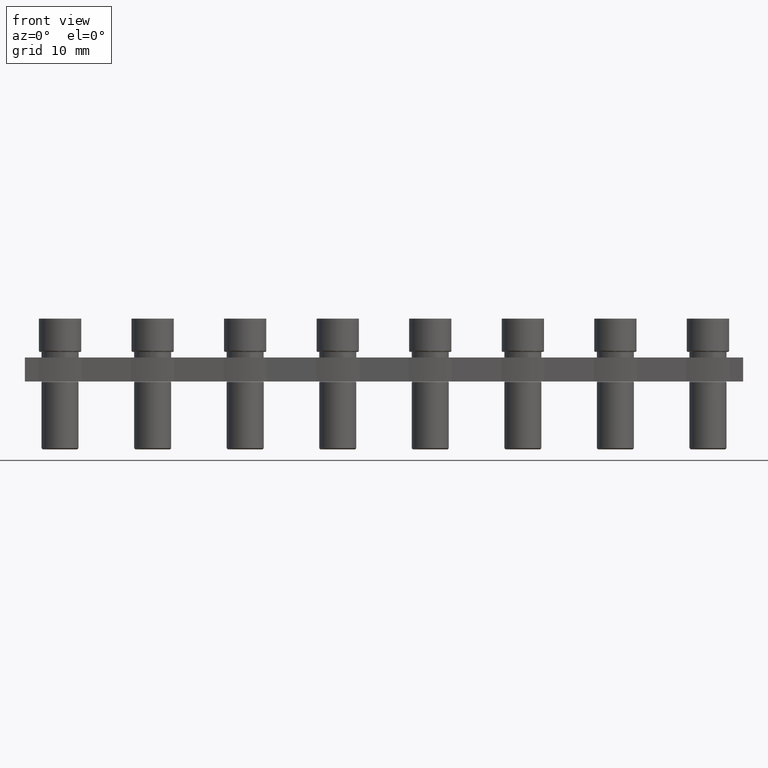
[diagram: clean part render]
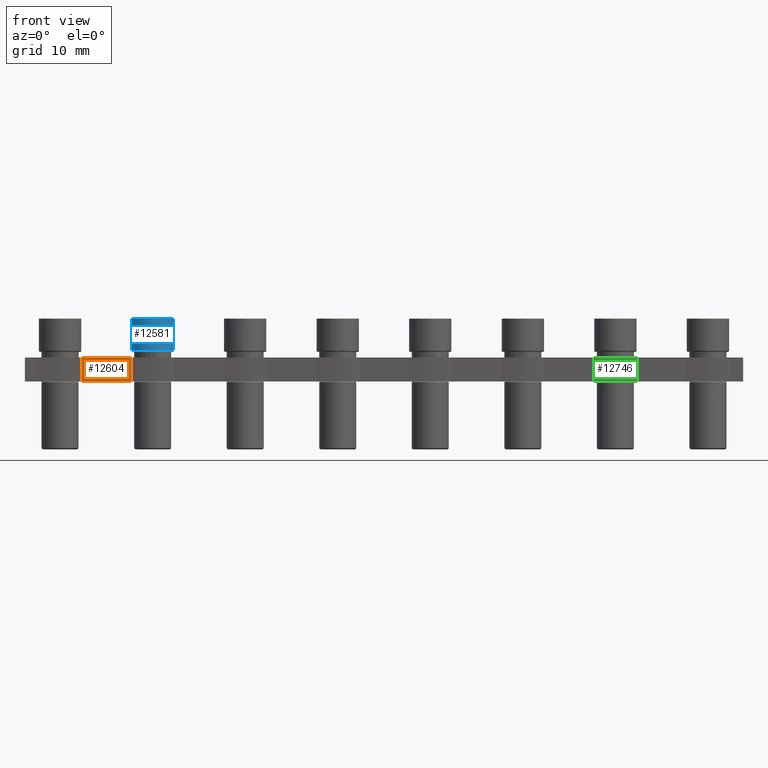
[diagram: same view with three faces highlighted in distinct colors, each labeled with its STEP entity id]
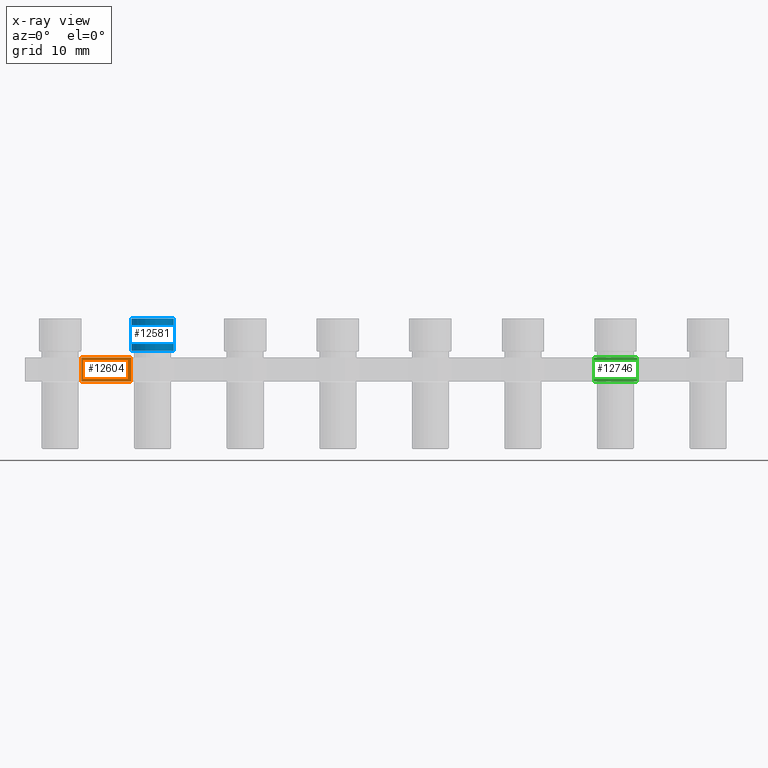
[diagram: x-ray of the same camera — body ghosted, the three highlighted faces saturated]
A machine part, front view with three faces highlighted in distinct colors.
The next image is the same camera in x-ray (body ghosted, the three faces saturated) — at least one of them is partly hidden behind the body in this view.
Their STEP definitions:

[orange] entity #12604 — the highlighted planar face has unit normal (-0, 1, 0).
#498 = EDGE_CURVE ( 'NONE', #2132, #2150, #14684, .T. ) ;
#1515 = CARTESIAN_POINT ( 'NONE',  ( 31.15000000000001300, -3.349999999999917500, -0.9000000000000014700 ) ) ;
#1522 = DIRECTION ( 'NONE',  ( 1.000000000000000000, 1.245679091791856200E-016, -0.0000000000000000000 ) ) ;
#1526 = LINE ( 'NONE', #1515, #12152 ) ;
#1739 = LINE ( 'NONE', #1753, #12205 ) ;
#1742 = DIRECTION ( 'NONE',  ( 0.0000000000000000000, 0.0000000000000000000, 1.000000000000000000 ) ) ;
#1753 = CARTESIAN_POINT ( 'NONE',  ( 3.500000000001513000, -3.349999999999964100, -11.80160695840604700 ) ) ;
#2132 = VERTEX_POINT ( 'NONE', #8653 ) ;
#2150 = VERTEX_POINT ( 'NONE', #8633 ) ;
#2221 = VERTEX_POINT ( 'NONE', #8707 ) ;
#2237 = VERTEX_POINT ( 'NONE', #8771 ) ;
#2807 = EDGE_LOOP ( 'NONE', ( #5006, #5019, #5066, #5042 ) ) ;
#5006 = ORIENTED_EDGE ( 'NONE', *, *, #13015, .F. ) ;
#5019 = ORIENTED_EDGE ( 'NONE', *, *, #13055, .F. ) ;
#5042 = ORIENTED_EDGE ( 'NONE', *, *, #13118, .T. ) ;
#5066 = ORIENTED_EDGE ( 'NONE', *, *, #498, .F. ) ;
#7409 = PLANE ( 'NONE',  #11787 ) ;
#7426 = CARTESIAN_POINT ( 'NONE',  ( 31.15000000000001300, -3.349999999999917500, -0.9000000000000014700 ) ) ;
#7427 = DIRECTION ( 'NONE',  ( -1.000000000000000000, -1.245679091791856200E-016, 0.0000000000000000000 ) ) ;
#7437 = FACE_OUTER_BOUND ( 'NONE', #2807, .T. ) ;
#7440 = DIRECTION ( 'NONE',  ( -1.245679091791856200E-016, 1.000000000000000000, 0.0000000000000000000 ) ) ;
#8633 = CARTESIAN_POINT ( 'NONE',  ( 3.500000000001739900, -3.349999999999943200, -4.800000000000001600 ) ) ;
#8653 = CARTESIAN_POINT ( 'NONE',  ( 11.49999999999991100, -3.349999999999942400, -4.800000000000001600 ) ) ;
#8707 = CARTESIAN_POINT ( 'NONE',  ( 11.49999999999990900, -3.349999999999942400, -0.9000000000000014700 ) ) ;
#8771 = CARTESIAN_POINT ( 'NONE',  ( 3.500000000001742600, -3.349999999999943200, -0.9000000000000014700 ) ) ;
#9441 = LINE ( 'NONE', #9446, #11231 ) ;
#9446 = CARTESIAN_POINT ( 'NONE',  ( 11.50000000000013900, -3.349999999999963200, -11.80160695840604700 ) ) ;
#9450 = DIRECTION ( 'NONE',  ( 0.0000000000000000000, 0.0000000000000000000, 1.000000000000000000 ) ) ;
#10486 = VECTOR ( 'NONE', #14678, 1000.000000000000000 ) ;
#11231 = VECTOR ( 'NONE', #9450, 1000.000000000000000 ) ;
#11787 = AXIS2_PLACEMENT_3D ( 'NONE', #7426, #7440, #7427 ) ;
#12152 = VECTOR ( 'NONE', #1522, 1000.000000000000000 ) ;
#12205 = VECTOR ( 'NONE', #1742, 1000.000000000000000 ) ;
#12604 = ADVANCED_FACE ( 'NONE', ( #7437 ), #7409, .F. ) ;
#13015 = EDGE_CURVE ( 'NONE', #2237, #2221, #1526, .T. ) ;
#13055 = EDGE_CURVE ( 'NONE', #2150, #2237, #1739, .T. ) ;
#13118 = EDGE_CURVE ( 'NONE', #2132, #2221, #9441, .T. ) ;
#14664 = CARTESIAN_POINT ( 'NONE',  ( -62.85000000000001600, -3.349999999999918800, -4.800000000000001600 ) ) ;
#14678 = DIRECTION ( 'NONE',  ( -1.000000000000000000, 0.0000000000000000000, -0.0000000000000000000 ) ) ;
#14684 = LINE ( 'NONE', #14664, #10486 ) ;

[blue] entity #12581 — the highlighted cylindrical surface (edge-blend (fillet) strip) has radius 3.425 mm, axis along (0, 0, -1).
#350 = EDGE_CURVE ( 'NONE', #2153, #2068, #10232, .T. ) ;
#361 = EDGE_CURVE ( 'NONE', #2153, #2488, #14246, .T. ) ;
#382 = EDGE_CURVE ( 'NONE', #2488, #2496, #10290, .T. ) ;
#398 = EDGE_CURVE ( 'NONE', #2068, #2496, #14384, .T. ) ;
#2068 = VERTEX_POINT ( 'NONE', #8507 ) ;
#2153 = VERTEX_POINT ( 'NONE', #8627 ) ;
#2488 = VERTEX_POINT ( 'NONE', #8949 ) ;
#2496 = VERTEX_POINT ( 'NONE', #8941 ) ;
#2789 = EDGE_LOOP ( 'NONE', ( #4702, #4758, #4698, #4756 ) ) ;
#4698 = ORIENTED_EDGE ( 'NONE', *, *, #382, .T. ) ;
#4702 = ORIENTED_EDGE ( 'NONE', *, *, #350, .F. ) ;
#4756 = ORIENTED_EDGE ( 'NONE', *, *, #398, .F. ) ;
#4758 = ORIENTED_EDGE ( 'NONE', *, *, #361, .T. ) ;
#7216 = CARTESIAN_POINT ( 'NONE',  ( 15.00000000000165000, 1.868518637687989600E-015, 5.400000000000000400 ) ) ;
#7226 = DIRECTION ( 'NONE',  ( 1.000000000000000000, 2.491358183583711900E-016, 0.0000000000000000000 ) ) ;
#7233 = DIRECTION ( 'NONE',  ( 0.0000000000000000000, 0.0000000000000000000, -1.000000000000000000 ) ) ;
#7236 = FACE_OUTER_BOUND ( 'NONE', #2789, .T. ) ;
#7245 = CYLINDRICAL_SURFACE ( 'NONE', #11796, 3.424999999999997600 ) ;
#8507 = CARTESIAN_POINT ( 'NONE',  ( 18.42500000000164900, 2.721808815565410300E-015, 5.400000000000000400 ) ) ;
#8627 = CARTESIAN_POINT ( 'NONE',  ( 11.57500000000165300, 5.957869311026002800E-016, 5.400000000000000400 ) ) ;
#8941 = CARTESIAN_POINT ( 'NONE',  ( 18.42500000000164900, 2.721808815565410300E-015, 0.1999999999999996500 ) ) ;
#8949 = CARTESIAN_POINT ( 'NONE',  ( 11.57500000000165300, 5.957869311026000800E-016, 0.1999999999999996500 ) ) ;
#10232 = CIRCLE ( 'NONE', #10236, 3.424999999999997600 ) ;
#10236 = AXIS2_PLACEMENT_3D ( 'NONE', #14201, #14190, #14221 ) ;
#10256 = VECTOR ( 'NONE', #14258, 1000.000000000000000 ) ;
#10277 = VECTOR ( 'NONE', #14375, 1000.000000000000000 ) ;
#10290 = CIRCLE ( 'NONE', #10305, 3.424999999999997600 ) ;
#10305 = AXIS2_PLACEMENT_3D ( 'NONE', #14339, #14316, #14341 ) ;
#11796 = AXIS2_PLACEMENT_3D ( 'NONE', #7216, #7233, #7226 ) ;
#12581 = ADVANCED_FACE ( 'NONE', ( #7236 ), #7245, .T. ) ;
#14190 = DIRECTION ( 'NONE',  ( -0.0000000000000000000, -0.0000000000000000000, 1.000000000000000000 ) ) ;
#14201 = CARTESIAN_POINT ( 'NONE',  ( 15.00000000000165000, 1.868518637687989600E-015, 5.400000000000000400 ) ) ;
#14221 = DIRECTION ( 'NONE',  ( 1.000000000000000000, 2.491358183583711900E-016, 0.0000000000000000000 ) ) ;
#14246 = LINE ( 'NONE', #14267, #10256 ) ;
#14258 = DIRECTION ( 'NONE',  ( 0.0000000000000000000, 0.0000000000000000000, -1.000000000000000000 ) ) ;
#14267 = CARTESIAN_POINT ( 'NONE',  ( 11.57500000000165300, 5.957869311026004800E-016, 5.400000000000000400 ) ) ;
#14316 = DIRECTION ( 'NONE',  ( 0.0000000000000000000, 0.0000000000000000000, 1.000000000000000000 ) ) ;
#14339 = CARTESIAN_POINT ( 'NONE',  ( 15.00000000000165000, 2.078239402041973700E-015, 0.1999999999999996500 ) ) ;
#14341 = DIRECTION ( 'NONE',  ( -1.000000000000000000, -2.491358183583711900E-016, 0.0000000000000000000 ) ) ;
#14356 = CARTESIAN_POINT ( 'NONE',  ( 18.42500000000164900, 2.721808815565410300E-015, 5.400000000000000400 ) ) ;
#14375 = DIRECTION ( 'NONE',  ( 0.0000000000000000000, 0.0000000000000000000, -1.000000000000000000 ) ) ;
#14384 = LINE ( 'NONE', #14356, #10277 ) ;

[green] entity #12746 — the highlighted cylindrical surface (partial cylindrical patch) has radius 17.675 mm, axis along (0, 0, 1).
#488 = EDGE_CURVE ( 'NONE', #2160, #2168, #10445, .T. ) ;
#2160 = VERTEX_POINT ( 'NONE', #8661 ) ;
#2168 = VERTEX_POINT ( 'NONE', #8642 ) ;
#2196 = VERTEX_POINT ( 'NONE', #8678 ) ;
#2235 = VERTEX_POINT ( 'NONE', #8782 ) ;
#3003 = EDGE_LOOP ( 'NONE', ( #5692, #5721, #5693, #5725 ) ) ;
#4444 = CARTESIAN_POINT ( 'NONE',  ( 93.50000000000368100, -3.349999999999611100, -0.9000000000000014700 ) ) ;
#4445 = DIRECTION ( 'NONE',  ( -0.0000000000000000000, -0.0000000000000000000, -1.000000000000000000 ) ) ;
#4459 = LINE ( 'NONE', #4444, #11342 ) ;
#5692 = ORIENTED_EDGE ( 'NONE', *, *, #13236, .F. ) ;
#5693 = ORIENTED_EDGE ( 'NONE', *, *, #13157, .F. ) ;
#5721 = ORIENTED_EDGE ( 'NONE', *, *, #12974, .T. ) ;
#5725 = ORIENTED_EDGE ( 'NONE', *, *, #488, .F. ) ;
#8642 = CARTESIAN_POINT ( 'NONE',  ( 86.49999999999991500, -3.349999999999639900, -4.800000000000001600 ) ) ;
#8661 = CARTESIAN_POINT ( 'NONE',  ( 93.50000000000169100, -3.349999999999781600, -4.800000000000001600 ) ) ;
#8678 = CARTESIAN_POINT ( 'NONE',  ( 93.50000000000368100, -3.349999999999610200, -0.9000000000000014700 ) ) ;
#8782 = CARTESIAN_POINT ( 'NONE',  ( 86.49999999999991500, -3.349999999999639900, -0.9000000000000014700 ) ) ;
#9701 = CARTESIAN_POINT ( 'NONE',  ( 86.50000000000012800, -3.349999999999660400, -11.80160695840604700 ) ) ;
#9713 = LINE ( 'NONE', #9701, #11309 ) ;
#9717 = DIRECTION ( 'NONE',  ( 0.0000000000000000000, 0.0000000000000000000, 1.000000000000000000 ) ) ;
#9893 = CARTESIAN_POINT ( 'NONE',  ( 90.00000000000164800, 13.97500000000509400, -0.9000000000000014700 ) ) ;
#9894 = DIRECTION ( 'NONE',  ( -0.0000000000000000000, -0.0000000000000000000, -1.000000000000000000 ) ) ;
#9899 = DIRECTION ( 'NONE',  ( -1.000000000000000000, -2.944367993170587500E-016, 0.0000000000000000000 ) ) ;
#10445 = CIRCLE ( 'NONE', #10448, 17.67500000000478300 ) ;
#10448 = AXIS2_PLACEMENT_3D ( 'NONE', #14637, #14621, #14616 ) ;
#10703 = FACE_OUTER_BOUND ( 'NONE', #3003, .T. ) ;
#10722 = CYLINDRICAL_SURFACE ( 'NONE', #11909, 17.67500000000478300 ) ;
#10724 = CARTESIAN_POINT ( 'NONE',  ( 90.00000000000164800, 13.97500000000509400, -11.80874453807542700 ) ) ;
#10733 = DIRECTION ( 'NONE',  ( 0.0000000000000000000, 0.0000000000000000000, 1.000000000000000000 ) ) ;
#10793 = DIRECTION ( 'NONE',  ( -1.000000000000000000, -2.944367993170587500E-016, 0.0000000000000000000 ) ) ;
#11309 = VECTOR ( 'NONE', #9717, 1000.000000000000000 ) ;
#11342 = VECTOR ( 'NONE', #4445, 1000.000000000000000 ) ;
#11909 = AXIS2_PLACEMENT_3D ( 'NONE', #10724, #10733, #10793 ) ;
#12060 = AXIS2_PLACEMENT_3D ( 'NONE', #9893, #9894, #9899 ) ;
#12085 = CIRCLE ( 'NONE', #12060, 17.67500000000478300 ) ;
#12746 = ADVANCED_FACE ( 'NONE', ( #10703 ), #10722, .T. ) ;
#12974 = EDGE_CURVE ( 'NONE', #2196, #2235, #12085, .T. ) ;
#13157 = EDGE_CURVE ( 'NONE', #2168, #2235, #9713, .T. ) ;
#13236 = EDGE_CURVE ( 'NONE', #2196, #2160, #4459, .T. ) ;
#14616 = DIRECTION ( 'NONE',  ( 1.000000000000000000, 2.061057595219411100E-015, 0.0000000000000000000 ) ) ;
#14621 = DIRECTION ( 'NONE',  ( -0.0000000000000000000, 0.0000000000000000000, -1.000000000000000000 ) ) ;
#14637 = CARTESIAN_POINT ( 'NONE',  ( 90.00000000000164800, 13.97500000000509400, -4.800000000000001600 ) ) ;